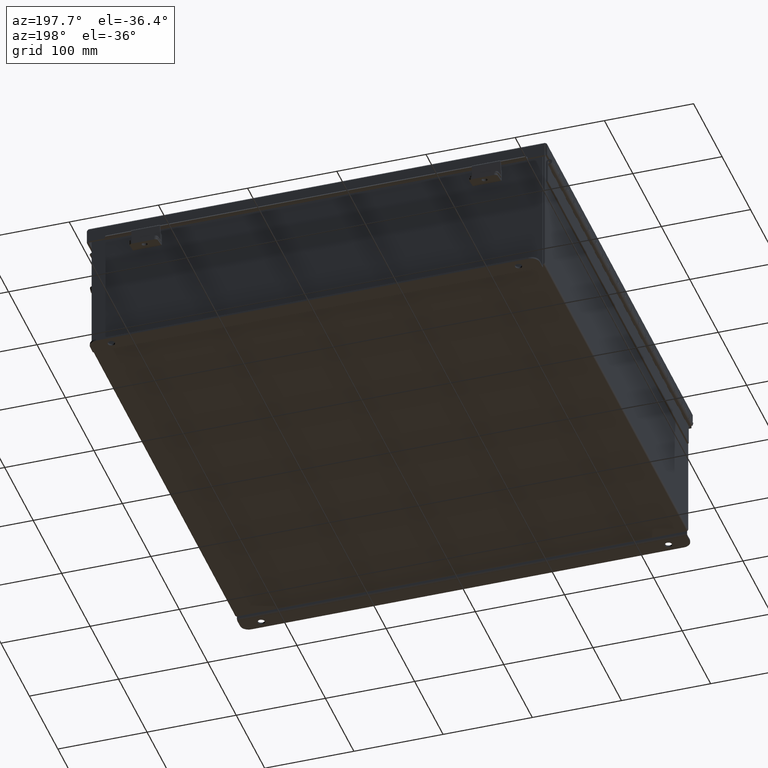
[diagram: clean part render]
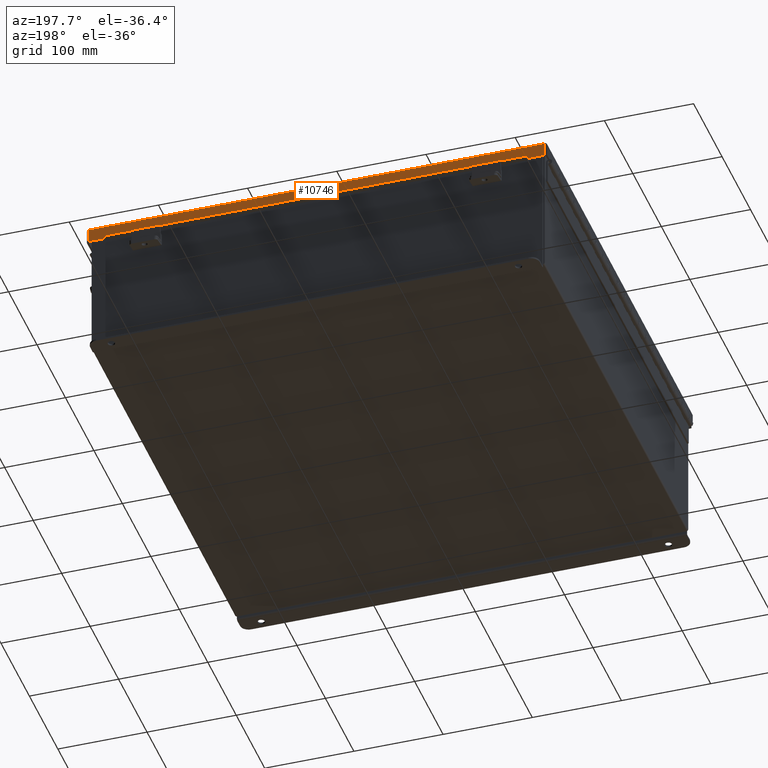
[diagram: same view with one face highlighted and labeled with its STEP entity id]
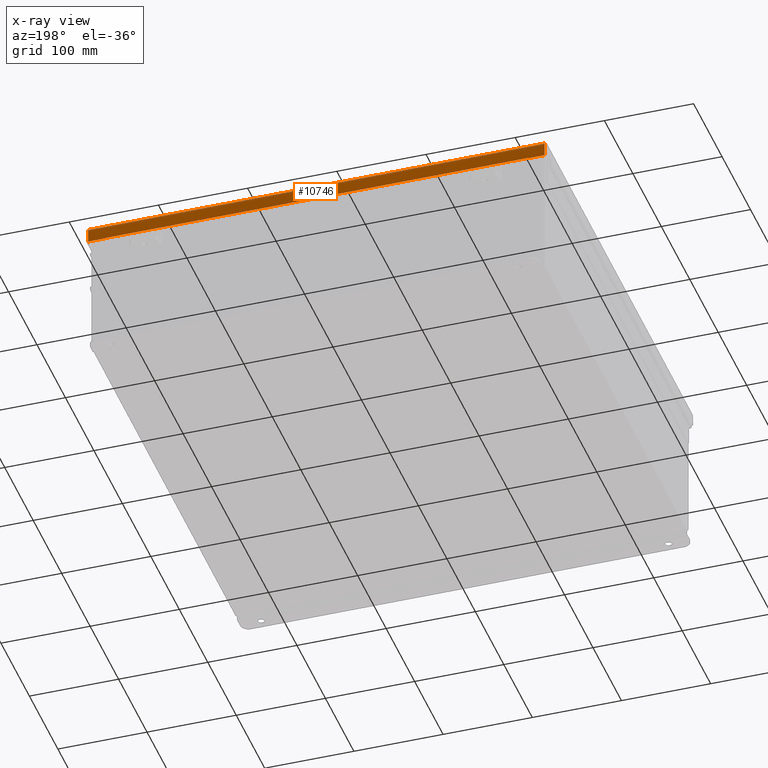
[diagram: x-ray of the same camera — body ghosted, the highlighted face saturated]
A machine part, auxiliary view. The second image highlights one B-rep face of the part: STEP entity #10746.
The next image is the same camera in x-ray: the body ghosted, the highlighted face saturated — about 0% of this face is hidden behind the body in this view.
In plain terms, the highlighted planar face has unit normal (-0, -1, -0).
Its self-contained STEP definition (entity closure, byte-faithful):
#554 = DIRECTION ( 'NONE',  ( 1.000000000000000000, 3.215538059845590000E-030, 3.362274453740340600E-018 ) ) ;
#664 = ORIENTED_EDGE ( 'NONE', *, *, #14785, .F. ) ;
#1010 = EDGE_CURVE ( 'NONE', #21996, #5622, #9208, .T. ) ;
#1522 = LINE ( 'NONE', #10408, #19366 ) ;
#2660 = CARTESIAN_POINT ( 'NONE',  ( 10.07447893218817300, 10.15624999999998400, 0.0000000000000000000 ) ) ;
#3190 = ORIENTED_EDGE ( 'NONE', *, *, #17108, .F. ) ;
#3436 = ORIENTED_EDGE ( 'NONE', *, *, #5857, .F. ) ;
#3998 = ORIENTED_EDGE ( 'NONE', *, *, #7862, .F. ) ;
#4072 = VERTEX_POINT ( 'NONE', #17594 ) ;
#4182 = VECTOR ( 'NONE', #22274, 39.37007874015748100 ) ;
#4739 = VERTEX_POINT ( 'NONE', #21729 ) ;
#4892 = CARTESIAN_POINT ( 'NONE',  ( -9.324478932188165800, 10.15624999999998600, 0.6123000000000080600 ) ) ;
#5035 = LINE ( 'NONE', #2660, #13736 ) ;
#5137 = CARTESIAN_POINT ( 'NONE',  ( 10.07447893218817300, 10.15624999999998400, 0.01300000000000010700 ) ) ;
#5194 = LINE ( 'NONE', #9922, #18612 ) ;
#5277 = PLANE ( 'NONE',  #18671 ) ;
#5622 = VERTEX_POINT ( 'NONE', #4892 ) ;
#5735 = DIRECTION ( 'NONE',  ( 0.0000000000000000000, 3.569293475308532400E-015, 1.000000000000000000 ) ) ;
#5774 = EDGE_CURVE ( 'NONE', #16277, #21996, #20851, .T. ) ;
#5857 = EDGE_CURVE ( 'NONE', #4739, #5622, #5194, .T. ) ;
#5896 = CARTESIAN_POINT ( 'NONE',  ( -10.07447893218816400, 10.15624999999998400, 0.01300000000000010700 ) ) ;
#6460 = DIRECTION ( 'NONE',  ( -3.347543324056399800E-030, -1.000000000000000000, 3.569293475308532400E-015 ) ) ;
#7154 = ORIENTED_EDGE ( 'NONE', *, *, #17893, .T. ) ;
#7364 = CARTESIAN_POINT ( 'NONE',  ( 6.402768735150616900E-018, 10.15624999999998600, 0.6122999999999994000 ) ) ;
#7862 = EDGE_CURVE ( 'NONE', #16277, #17675, #21459, .T. ) ;
#9208 = LINE ( 'NONE', #13803, #21716 ) ;
#9515 = VERTEX_POINT ( 'NONE', #9955 ) ;
#9922 = CARTESIAN_POINT ( 'NONE',  ( -9.324478932188164000, 10.15624999999998400, 0.5967115427318869800 ) ) ;
#9955 = CARTESIAN_POINT ( 'NONE',  ( 9.324478932188171100, 10.15624999999998600, 0.6123000000000005100 ) ) ;
#10160 = FACE_OUTER_BOUND ( 'NONE', #13191, .T. ) ;
#10408 = CARTESIAN_POINT ( 'NONE',  ( 9.324478932188171100, 10.15624999999998400, 0.5967115427318793200 ) ) ;
#10746 = ADVANCED_FACE ( 'NONE', ( #10160 ), #5277, .F. ) ;
#10806 = VERTEX_POINT ( 'NONE', #16662 ) ;
#11687 = ORIENTED_EDGE ( 'NONE', *, *, #5774, .T. ) ;
#11882 = VECTOR ( 'NONE', #5735, 39.37007874015748100 ) ;
#12204 = VECTOR ( 'NONE', #14416, 39.37007874015748100 ) ;
#13154 = CARTESIAN_POINT ( 'NONE',  ( 10.15625000000003900, 10.15624999999998400, 0.01299999999999901400 ) ) ;
#13191 = EDGE_LOOP ( 'NONE', ( #3190, #7154, #664, #3998, #11687, #15108, #3436, #21218 ) ) ;
#13351 = LINE ( 'NONE', #16845, #4182 ) ;
#13736 = VECTOR ( 'NONE', #18222, 39.37007874015748100 ) ;
#13803 = CARTESIAN_POINT ( 'NONE',  ( 6.402768735150616900E-018, 10.15624999999998600, 0.6122999999999994000 ) ) ;
#14395 = CARTESIAN_POINT ( 'NONE',  ( -10.07447893218816400, 10.15624999999998400, -3.606039351636827200E-014 ) ) ;
#14416 = DIRECTION ( 'NONE',  ( 1.000000000000000000, 3.215538059845590000E-030, 3.362274453740340600E-018 ) ) ;
#14785 = EDGE_CURVE ( 'NONE', #17675, #4072, #5035, .T. ) ;
#15108 = ORIENTED_EDGE ( 'NONE', *, *, #1010, .T. ) ;
#16277 = VERTEX_POINT ( 'NONE', #5896 ) ;
#16528 = CARTESIAN_POINT ( 'NONE',  ( 0.0000000000000000000, 10.15624999999998400, -3.715313271383398100E-014 ) ) ;
#16662 = CARTESIAN_POINT ( 'NONE',  ( 9.324478932188171100, 10.15624999999998400, 0.5967115427318793200 ) ) ;
#16845 = CARTESIAN_POINT ( 'NONE',  ( 9.324478932188171100, 10.15624999999998600, 0.6122999999999994000 ) ) ;
#16974 = LINE ( 'NONE', #7364, #12204 ) ;
#17108 = EDGE_CURVE ( 'NONE', #9515, #10806, #13351, .T. ) ;
#17594 = CARTESIAN_POINT ( 'NONE',  ( 10.07447893218817300, 10.15624999999998600, 0.6123000000000005100 ) ) ;
#17611 = DIRECTION ( 'NONE',  ( -1.000000000000000000, -3.215975411700707400E-030, -0.0000000000000000000 ) ) ;
#17675 = VERTEX_POINT ( 'NONE', #5137 ) ;
#17893 = EDGE_CURVE ( 'NONE', #9515, #4072, #16974, .T. ) ;
#18222 = DIRECTION ( 'NONE',  ( -0.0000000000000000000, 3.569293475308532400E-015, 1.000000000000000000 ) ) ;
#18612 = VECTOR ( 'NONE', #22069, 39.37007874015748100 ) ;
#18671 = AXIS2_PLACEMENT_3D ( 'NONE', #16528, #6460, #19379 ) ;
#19366 = VECTOR ( 'NONE', #17611, 39.37007874015748100 ) ;
#19379 = DIRECTION ( 'NONE',  ( 0.0000000000000000000, -3.569293475308532400E-015, -1.000000000000000000 ) ) ;
#19481 = CARTESIAN_POINT ( 'NONE',  ( -10.07447893218816400, 10.15624999999998600, 0.6123000000000080600 ) ) ;
#20719 = EDGE_CURVE ( 'NONE', #10806, #4739, #1522, .T. ) ;
#20851 = LINE ( 'NONE', #14395, #11882 ) ;
#20916 = VECTOR ( 'NONE', #21878, 39.37007874015748100 ) ;
#21218 = ORIENTED_EDGE ( 'NONE', *, *, #20719, .F. ) ;
#21459 = LINE ( 'NONE', #13154, #20916 ) ;
#21716 = VECTOR ( 'NONE', #554, 39.37007874015748100 ) ;
#21729 = CARTESIAN_POINT ( 'NONE',  ( -9.324478932188164000, 10.15624999999998600, 0.5967115427318869800 ) ) ;
#21878 = DIRECTION ( 'NONE',  ( 1.000000000000000000, 3.215975411700707400E-030, -0.0000000000000000000 ) ) ;
#21996 = VERTEX_POINT ( 'NONE', #19481 ) ;
#22069 = DIRECTION ( 'NONE',  ( -7.009925220120437100E-014, 1.401985044024085400E-013, 1.000000000000000000 ) ) ;
#22274 = DIRECTION ( 'NONE',  ( 7.009925220120712300E-014, -1.401985044024140700E-013, -1.000000000000000000 ) ) ;